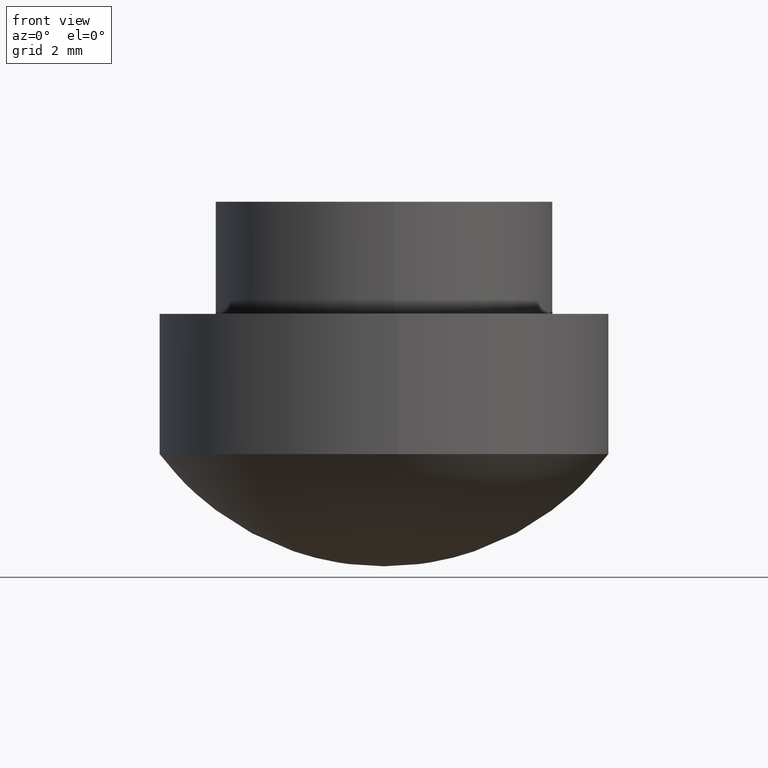
[diagram: clean part render]
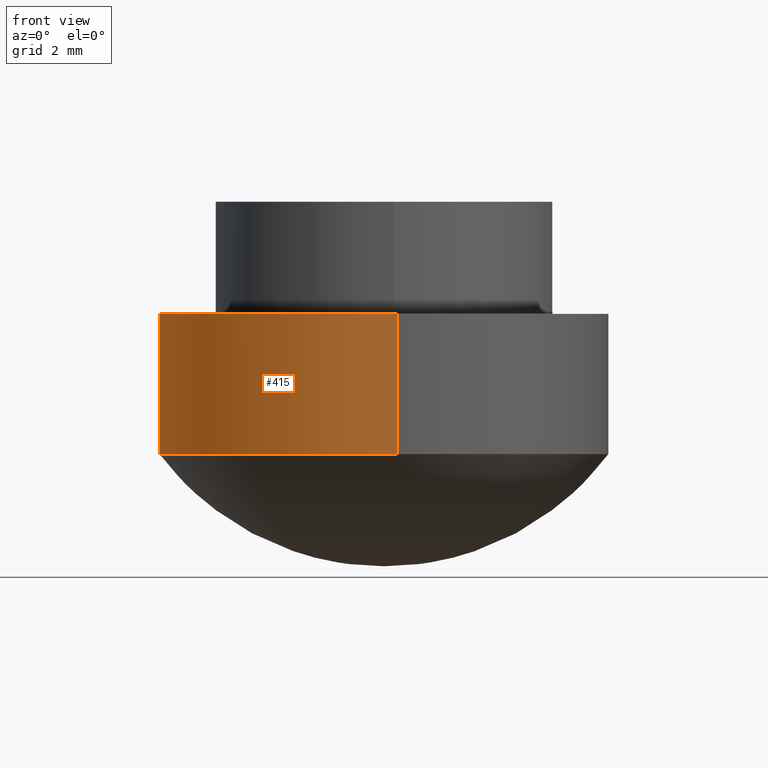
[diagram: same view with one face highlighted and labeled with its STEP entity id]
A machine part, front view. The second image highlights one B-rep face of the part: STEP entity #415.
In plain terms, the highlighted face is a freeform B-spline surface patch.
Its self-contained STEP definition (entity closure, byte-faithful):
#252=CARTESIAN_POINT('',(-0.944268818896609,7.944076802831477,8.999999999999961));
#253=VERTEX_POINT('',#252);
#271=CARTESIAN_POINT('',(0.488385459123709,-7.985078552835898,8.999999999999979));
#272=VERTEX_POINT('',#271);
#286=CARTESIAN_POINT('',(0.488385492346112,-7.985078532225735,3.999999950550500));
#287=VERTEX_POINT('',#286);
#288=CARTESIAN_POINT('',(0.488385459123709,-7.985078552835898,8.999999999999979));
#289=CARTESIAN_POINT('',(0.488385492346112,-7.985078532225735,3.999999950550500));
#290=QUASI_UNIFORM_CURVE('',1,(#288,#289),.UNSPECIFIED.,.F.,.U.);
#291=EDGE_CURVE('',#272,#287,#290,.T.);
#308=CARTESIAN_POINT('',(-0.944268877604578,7.944076777179117,3.999999950550500));
#309=VERTEX_POINT('',#308);
#325=CARTESIAN_POINT('',(-0.944268818896609,7.944076802831477,8.999999999999961));
#326=CARTESIAN_POINT('',(-0.944268877604578,7.944076777179117,3.999999950550500));
#327=QUASI_UNIFORM_CURVE('',1,(#325,#326),.UNSPECIFIED.,.F.,.U.);
#328=EDGE_CURVE('',#253,#309,#327,.T.);
#333=CARTESIAN_POINT('',(0.488388315146799,-7.985078368865961,9.125000001236240));
#334=CARTESIAN_POINT('',(-7.496690053719162,-8.473466684012760,9.125000001236240));
#335=CARTESIAN_POINT('',(-7.985078368865961,-0.488388315146799,9.125000001236240));
#336=CARTESIAN_POINT('',(-8.446289554282185,7.052347910369052,9.125000001236240));
#337=CARTESIAN_POINT('',(-0.944273875065293,7.944076192495398,9.125000001236240));
#338=CARTESIAN_POINT('',(0.488388315146799,-7.985078368865961,3.871874949283356));
#339=CARTESIAN_POINT('',(-7.496690053719162,-8.473466684012760,3.871874949283356));
#340=CARTESIAN_POINT('',(-7.985078368865961,-0.488388315146799,3.871874949283356));
#341=CARTESIAN_POINT('',(-8.446289554282185,7.052347910369052,3.871874949283356));
#342=CARTESIAN_POINT('',(-0.944273875065293,7.944076192495398,3.871874949283356));
#350=(BOUNDED_SURFACE()B_SPLINE_SURFACE(2,1,((#333,#338),(#334,#339),(#335,#340),(#336,#341),(#337,#342)),.UNSPECIFIED.,.F.,.F.,.U.)B_SPLINE_SURFACE_WITH_KNOTS((3,2,3),(2,2),(0.0,13.254833965215060,25.979474571821520),(0.0,5.253125051952884),.UNSPECIFIED.)GEOMETRIC_REPRESENTATION_ITEM()RATIONAL_B_SPLINE_SURFACE(((1.0,1.0),(0.707106781186548,0.707106781186548),(1.0,1.0),(0.718822509939086,0.718822509939086),(0.977505800795127,0.977505800795127)))REPRESENTATION_ITEM('')SURFACE());
#351=CARTESIAN_POINT('',(-8.0,0.0,9.0));
#352=VERTEX_POINT('',#351);
#353=CARTESIAN_POINT('',(-8.0,0.0,9.0));
#354=CARTESIAN_POINT('',(-8.0,7.105400762807472,9.0));
#355=CARTESIAN_POINT('',(-0.944268818896609,7.944076802831477,8.999999999999961));
#363=(BOUNDED_CURVE()B_SPLINE_CURVE(2,(#353,#354,#355),.UNSPECIFIED.,.F.,.U.)B_SPLINE_CURVE_WITH_KNOTS((3,3),(0.0,0.229562581104482),.UNSPECIFIED.)CURVE()GEOMETRIC_REPRESENTATION_ITEM()RATIONAL_B_SPLINE_CURVE((1.0,0.731050706804736,0.956026965066519))REPRESENTATION_ITEM(''));
#364=EDGE_CURVE('',#352,#253,#363,.T.);
#365=ORIENTED_EDGE('',*,*,#364,.T.);
#366=ORIENTED_EDGE('',*,*,#328,.T.);
#367=CARTESIAN_POINT('',(-7.999999962912870,0.0,3.999999950550500));
#368=VERTEX_POINT('',#367);
#369=CARTESIAN_POINT('',(-7.999999962912870,0.0,3.999999950550500));
#370=CARTESIAN_POINT('',(-7.999999962912868,7.105400675016465,3.999999950550500));
#371=CARTESIAN_POINT('',(-0.944268877604578,7.944076777179117,3.999999950550499));
#379=(BOUNDED_CURVE()B_SPLINE_CURVE(2,(#369,#370,#371),.UNSPECIFIED.,.F.,.U.)B_SPLINE_CURVE_WITH_KNOTS((3,3),(0.0,0.229562579808957),.UNSPECIFIED.)CURVE()GEOMETRIC_REPRESENTATION_ITEM()RATIONAL_B_SPLINE_CURVE((1.0,0.731050708322538,0.956026962527235))REPRESENTATION_ITEM(''));
#380=EDGE_CURVE('',#368,#309,#379,.T.);
#381=ORIENTED_EDGE('',*,*,#380,.F.);
#382=CARTESIAN_POINT('',(0.488385492346112,-7.985078532225735,3.999999950550500));
#383=CARTESIAN_POINT('',(0.244420690181673,-7.999999962912870,3.999999950550500));
#384=CARTESIAN_POINT('',(0.0,-7.999999962912870,3.999999950550500));
#385=CARTESIAN_POINT('',(-7.999999962912870,-7.999999962912870,3.999999950550501));
#386=CARTESIAN_POINT('',(-7.999999962912870,0.0,3.999999950550500));
#394=(BOUNDED_CURVE()B_SPLINE_CURVE(2,(#382,#383,#384,#385,#386),.UNSPECIFIED.,.F.,.U.)B_SPLINE_CURVE_WITH_KNOTS((3,2,3),(0.739333023226661,0.750000000000000,1.0),.UNSPECIFIED.)CURVE()GEOMETRIC_REPRESENTATION_ITEM()RATIONAL_B_SPLINE_CURVE((0.976072172375043,0.987502859351394,1.0,0.707106781186548,1.0))REPRESENTATION_ITEM(''));
#395=EDGE_CURVE('',#287,#368,#394,.T.);
#396=ORIENTED_EDGE('',*,*,#395,.F.);
#397=ORIENTED_EDGE('',*,*,#291,.F.);
#398=CARTESIAN_POINT('',(0.488385459123709,-7.985078552835898,8.999999999999979));
#399=CARTESIAN_POINT('',(0.244420674089390,-8.0,9.0));
#400=CARTESIAN_POINT('',(0.0,-8.0,9.0));
#401=CARTESIAN_POINT('',(-8.0,-8.0,9.000000000000002));
#402=CARTESIAN_POINT('',(-8.0,0.0,9.0));
#410=(BOUNDED_CURVE()B_SPLINE_CURVE(2,(#398,#399,#400,#401,#402),.UNSPECIFIED.,.F.,.U.)B_SPLINE_CURVE_WITH_KNOTS((3,2,3),(0.739333023969015,0.750000000000000,1.0),.UNSPECIFIED.)CURVE()GEOMETRIC_REPRESENTATION_ITEM()RATIONAL_B_SPLINE_CURVE((0.976072173966049,0.987502860221115,1.0,0.707106781186548,1.0))REPRESENTATION_ITEM(''));
#411=EDGE_CURVE('',#272,#352,#410,.T.);
#412=ORIENTED_EDGE('',*,*,#411,.T.);
#413=EDGE_LOOP('',(#365,#366,#381,#396,#397,#412));
#414=FACE_OUTER_BOUND('',#413,.T.);
#415=ADVANCED_FACE('',(#414),#350,.T.);